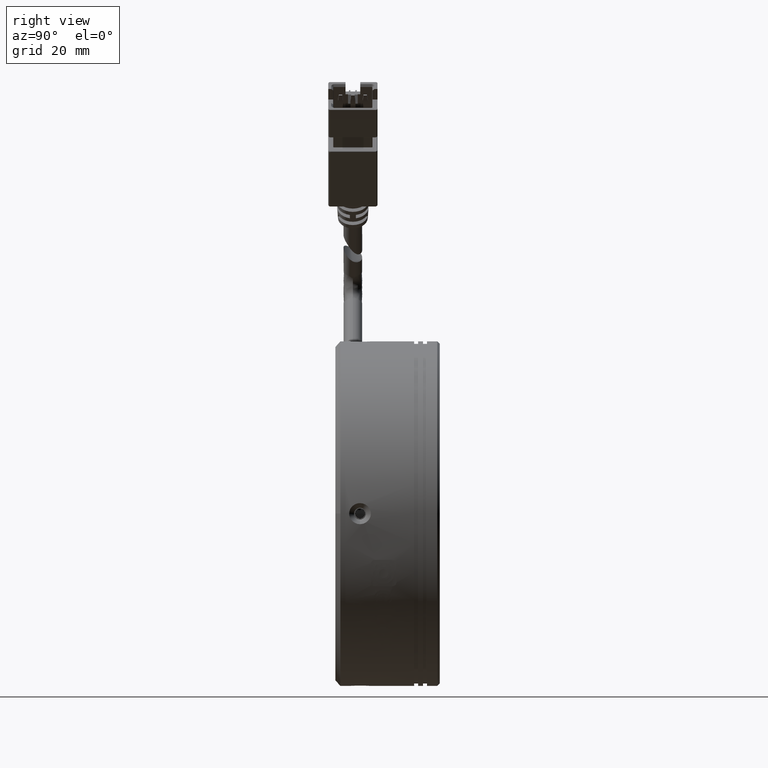
[diagram: clean part render]
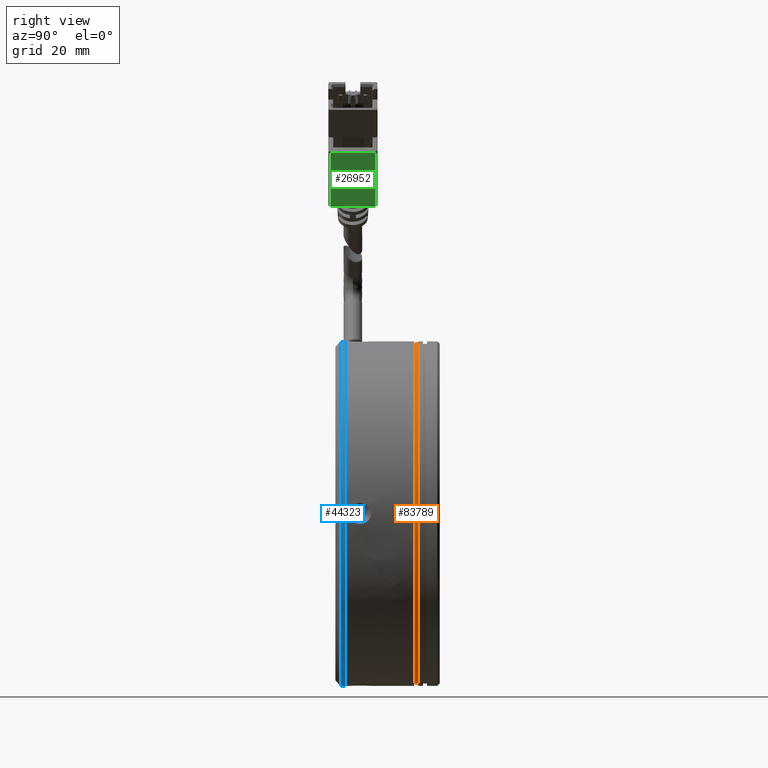
[diagram: same view with three faces highlighted in distinct colors, each labeled with its STEP entity id]
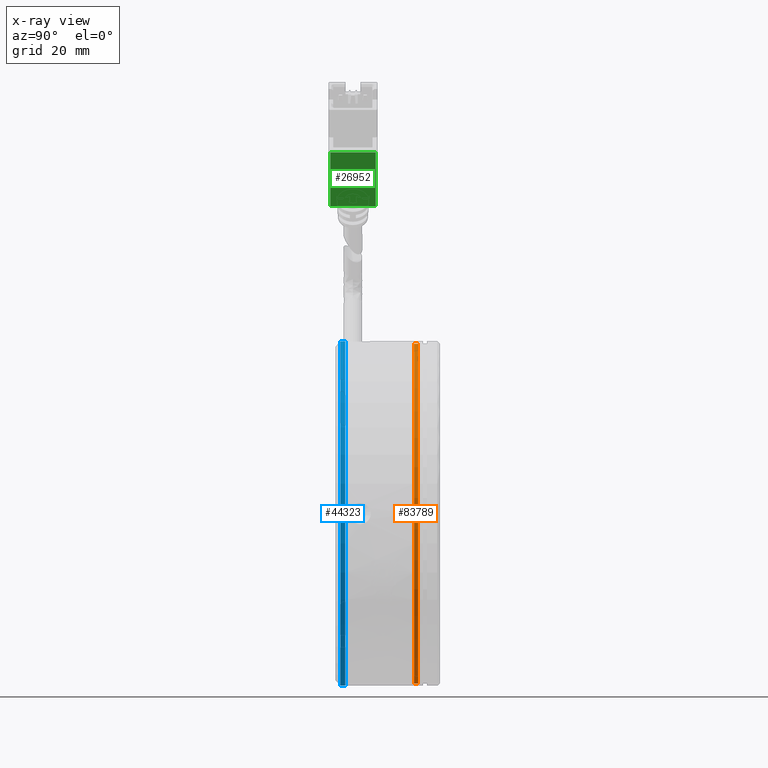
[diagram: x-ray of the same camera — body ghosted, the three highlighted faces saturated]
A machine part, right view with three faces highlighted in distinct colors.
The next image is the same camera in x-ray (body ghosted, the three faces saturated) — at least one of them is partly hidden behind the body in this view.
Their STEP definitions:

[orange] entity #83789 — the highlighted cylindrical surface (partial cylindrical patch) has radius 34.5 mm, axis along (-0, 1, -0).
#8212 = CIRCLE ( 'NONE', #49338, 34.50000000000000000 ) ;
#10632 = EDGE_CURVE ( 'NONE', #69471, #100024, #8212, .T. ) ;
#14315 = DIRECTION ( 'NONE',  ( -0.0000000000000000000, 1.000000000000000000, -0.0000000000000000000 ) ) ;
#16072 = VECTOR ( 'NONE', #79614, 1000.000000000000000 ) ;
#17702 = AXIS2_PLACEMENT_3D ( 'NONE', #73430, #97396, #65705 ) ;
#20538 = ORIENTED_EDGE ( 'NONE', *, *, #10632, .T. ) ;
#21811 = EDGE_CURVE ( 'NONE', #100024, #85615, #32176, .T. ) ;
#25638 = DIRECTION ( 'NONE',  ( 0.0000000000000000000, -1.000000000000000000, 0.0000000000000000000 ) ) ;
#32176 = LINE ( 'NONE', #62499, #74881 ) ;
#32441 = FACE_OUTER_BOUND ( 'NONE', #68642, .T. ) ;
#38430 = CARTESIAN_POINT ( 'NONE',  ( -37.22376356038466100, -9.936936790559604700, 21.39757451504468500 ) ) ;
#49338 = AXIS2_PLACEMENT_3D ( 'NONE', #89896, #89526, #88497 ) ;
#50849 = CARTESIAN_POINT ( 'NONE',  ( -37.22376356038466100, -10.73693679055960500, 21.39757451504468500 ) ) ;
#62499 = CARTESIAN_POINT ( 'NONE',  ( -37.22376356038465400, -18.43693679055963800, -47.60242548495532600 ) ) ;
#63813 = ORIENTED_EDGE ( 'NONE', *, *, #21811, .T. ) ;
#65410 = VERTEX_POINT ( 'NONE', #38430 ) ;
#65705 = DIRECTION ( 'NONE',  ( 0.0000000000000000000, 0.0000000000000000000, 1.000000000000000000 ) ) ;
#68642 = EDGE_LOOP ( 'NONE', ( #20538, #63813, #102768, #68748 ) ) ;
#68748 = ORIENTED_EDGE ( 'NONE', *, *, #96101, .F. ) ;
#69471 = VERTEX_POINT ( 'NONE', #50849 ) ;
#70589 = CARTESIAN_POINT ( 'NONE',  ( -37.22376356038465400, -9.936936790559604700, -47.60242548495532600 ) ) ;
#73430 = CARTESIAN_POINT ( 'NONE',  ( -37.22376356038466100, -18.43693679055963800, -13.10242548495532100 ) ) ;
#73749 = CARTESIAN_POINT ( 'NONE',  ( -37.22376356038466100, -9.936936790559604700, -13.10242548495532100 ) ) ;
#74881 = VECTOR ( 'NONE', #14315, 1000.000000000000000 ) ;
#79545 = CARTESIAN_POINT ( 'NONE',  ( -37.22376356038465400, -10.73693679055960500, -47.60242548495532600 ) ) ;
#79614 = DIRECTION ( 'NONE',  ( -0.0000000000000000000, 1.000000000000000000, -0.0000000000000000000 ) ) ;
#80238 = LINE ( 'NONE', #103168, #16072 ) ;
#81477 = CYLINDRICAL_SURFACE ( 'NONE', #17702, 34.50000000000000000 ) ;
#81882 = DIRECTION ( 'NONE',  ( 0.0000000000000000000, 0.0000000000000000000, 1.000000000000000000 ) ) ;
#83789 = ADVANCED_FACE ( 'NONE', ( #32441 ), #81477, .T. ) ;
#85520 = CIRCLE ( 'NONE', #91398, 34.50000000000000000 ) ;
#85615 = VERTEX_POINT ( 'NONE', #70589 ) ;
#88497 = DIRECTION ( 'NONE',  ( 0.0000000000000000000, 0.0000000000000000000, 1.000000000000000000 ) ) ;
#89526 = DIRECTION ( 'NONE',  ( -0.0000000000000000000, 1.000000000000000000, -0.0000000000000000000 ) ) ;
#89896 = CARTESIAN_POINT ( 'NONE',  ( -37.22376356038466100, -10.73693679055960500, -13.10242548495532100 ) ) ;
#91398 = AXIS2_PLACEMENT_3D ( 'NONE', #73749, #25638, #81882 ) ;
#91840 = EDGE_CURVE ( 'NONE', #85615, #65410, #85520, .T. ) ;
#96101 = EDGE_CURVE ( 'NONE', #69471, #65410, #80238, .T. ) ;
#97396 = DIRECTION ( 'NONE',  ( -0.0000000000000000000, 1.000000000000000000, -0.0000000000000000000 ) ) ;
#100024 = VERTEX_POINT ( 'NONE', #79545 ) ;
#102768 = ORIENTED_EDGE ( 'NONE', *, *, #91840, .T. ) ;
#103168 = CARTESIAN_POINT ( 'NONE',  ( -37.22376356038466100, -18.43693679055963800, 21.39757451504468500 ) ) ;

[blue] entity #44323 — the highlighted cylindrical surface (partial cylindrical patch) has radius 35 mm, axis along (-0, -1, -0).
#3523 = VERTEX_POINT ( 'NONE', #91219 ) ;
#5117 = ORIENTED_EDGE ( 'NONE', *, *, #92343, .F. ) ;
#10972 = VECTOR ( 'NONE', #73901, 1000.000000000000000 ) ;
#12324 = ORIENTED_EDGE ( 'NONE', *, *, #33097, .F. ) ;
#20973 = ORIENTED_EDGE ( 'NONE', *, *, #82830, .T. ) ;
#23369 = AXIS2_PLACEMENT_3D ( 'NONE', #39017, #47079, #32701 ) ;
#28299 = AXIS2_PLACEMENT_3D ( 'NONE', #84053, #35883, #92121 ) ;
#32398 = LINE ( 'NONE', #73550, #10972 ) ;
#32560 = CARTESIAN_POINT ( 'NONE',  ( -37.22376356038467500, -25.73693679055961100, -13.10242548495533300 ) ) ;
#32701 = DIRECTION ( 'NONE',  ( 0.0000000000000000000, 0.0000000000000000000, -1.000000000000000000 ) ) ;
#33097 = EDGE_CURVE ( 'NONE', #72331, #78908, #32398, .T. ) ;
#34183 = CARTESIAN_POINT ( 'NONE',  ( -37.22376356038467500, -24.73693679055958600, -48.10242548495534000 ) ) ;
#34920 = VECTOR ( 'NONE', #43268, 1000.000000000000000 ) ;
#35883 = DIRECTION ( 'NONE',  ( -0.0000000000000000000, -1.000000000000000000, -0.0000000000000000000 ) ) ;
#39017 = CARTESIAN_POINT ( 'NONE',  ( -37.22376356038467500, -41.20363406813558500, -13.10242548495533300 ) ) ;
#40663 = DIRECTION ( 'NONE',  ( -7.930164461608261400E-016, -9.912705577010326800E-017, 1.000000000000000000 ) ) ;
#43268 = DIRECTION ( 'NONE',  ( -0.0000000000000000000, -1.000000000000000000, -0.0000000000000000000 ) ) ;
#44323 = ADVANCED_FACE ( 'NONE', ( #66295 ), #48680, .T. ) ;
#47079 = DIRECTION ( 'NONE',  ( -0.0000000000000000000, -1.000000000000000000, -0.0000000000000000000 ) ) ;
#47101 = CARTESIAN_POINT ( 'NONE',  ( -37.22376356038467500, -24.73693679055958600, -13.10242548495533300 ) ) ;
#48680 = CYLINDRICAL_SURFACE ( 'NONE', #23369, 35.00000000000000000 ) ;
#51260 = VERTEX_POINT ( 'NONE', #72224 ) ;
#51782 = CIRCLE ( 'NONE', #28299, 35.00000000000000000 ) ;
#51848 = EDGE_CURVE ( 'NONE', #51260, #69425, #96522, .T. ) ;
#55197 = DIRECTION ( 'NONE',  ( 0.0000000000000000000, 0.0000000000000000000, -1.000000000000000000 ) ) ;
#55865 = CARTESIAN_POINT ( 'NONE',  ( -37.22376356038467500, -25.73693679055961100, -48.10242548495534000 ) ) ;
#58972 = CARTESIAN_POINT ( 'NONE',  ( -37.22376356038466800, -25.73693679055961100, 21.89757451504467100 ) ) ;
#65982 = ORIENTED_EDGE ( 'NONE', *, *, #51848, .T. ) ;
#66295 = FACE_OUTER_BOUND ( 'NONE', #90447, .T. ) ;
#69425 = VERTEX_POINT ( 'NONE', #58972 ) ;
#72224 = CARTESIAN_POINT ( 'NONE',  ( -37.22376356038466800, -24.73693679055958600, 21.89757451504467100 ) ) ;
#72331 = VERTEX_POINT ( 'NONE', #34183 ) ;
#73550 = CARTESIAN_POINT ( 'NONE',  ( -37.22376356038467500, -41.20363406813558500, -48.10242548495534000 ) ) ;
#73901 = DIRECTION ( 'NONE',  ( -0.0000000000000000000, -1.000000000000000000, -0.0000000000000000000 ) ) ;
#77962 = AXIS2_PLACEMENT_3D ( 'NONE', #32560, #88806, #40663 ) ;
#78185 = EDGE_CURVE ( 'NONE', #78908, #3523, #51782, .T. ) ;
#78908 = VERTEX_POINT ( 'NONE', #55865 ) ;
#82830 = EDGE_CURVE ( 'NONE', #72331, #51260, #101115, .T. ) ;
#84053 = CARTESIAN_POINT ( 'NONE',  ( -37.22376356038467500, -25.73693679055961100, -13.10242548495533300 ) ) ;
#88806 = DIRECTION ( 'NONE',  ( -0.0000000000000000000, -1.000000000000000000, -0.0000000000000000000 ) ) ;
#90447 = EDGE_LOOP ( 'NONE', ( #20973, #65982, #5117, #93927, #12324 ) ) ;
#91219 = CARTESIAN_POINT ( 'NONE',  ( -2.223763560384672800, -25.73693679055961100, -13.10242548495532900 ) ) ;
#91476 = CARTESIAN_POINT ( 'NONE',  ( -37.22376356038466800, -41.20363406813558500, 21.89757451504467100 ) ) ;
#92121 = DIRECTION ( 'NONE',  ( 0.0000000000000000000, -9.912705577010326800E-017, 1.000000000000000000 ) ) ;
#92343 = EDGE_CURVE ( 'NONE', #3523, #69425, #92836, .T. ) ;
#92836 = CIRCLE ( 'NONE', #77962, 35.00000000000000000 ) ;
#93542 = AXIS2_PLACEMENT_3D ( 'NONE', #47101, #103332, #55197 ) ;
#93927 = ORIENTED_EDGE ( 'NONE', *, *, #78185, .F. ) ;
#96522 = LINE ( 'NONE', #91476, #34920 ) ;
#101115 = CIRCLE ( 'NONE', #93542, 35.00000000000000000 ) ;
#103332 = DIRECTION ( 'NONE',  ( -0.0000000000000000000, -1.000000000000000000, -0.0000000000000000000 ) ) ;

[green] entity #26952 — the highlighted planar face has unit normal (-0.7071, -0, 0.7071).
#2714 = EDGE_CURVE ( 'NONE', #61691, #90692, #103710, .T. ) ;
#6745 = LINE ( 'NONE', #46755, #89807 ) ;
#7053 = CARTESIAN_POINT ( 'NONE',  ( -49.95168562174225000, -28.18693679055955300, 60.43667975844594100 ) ) ;
#7837 = CARTESIAN_POINT ( 'NONE',  ( -60.98255140825244800, -28.18693679055955700, 49.40581397193585600 ) ) ;
#9626 = CARTESIAN_POINT ( 'NONE',  ( -50.09310697797956600, -27.78693679055955500, 60.29525840220863100 ) ) ;
#9684 = DIRECTION ( 'NONE',  ( 0.7071067811865512400, 2.404204077359530700E-016, 0.7071067811865439100 ) ) ;
#9737 = LINE ( 'NONE', #81160, #68807 ) ;
#10005 = CARTESIAN_POINT ( 'NONE',  ( -49.95168562174225000, -27.78693679055955500, 60.43667975844594100 ) ) ;
#10118 = EDGE_CURVE ( 'NONE', #90692, #88249, #9737, .T. ) ;
#10963 = CARTESIAN_POINT ( 'NONE',  ( -60.98255140825244800, -27.78693679055955800, 49.40581397193585600 ) ) ;
#14762 = DIRECTION ( 'NONE',  ( -0.7071067811865512400, -2.404204077359530700E-016, -0.7071067811865439100 ) ) ;
#15151 = DIRECTION ( 'NONE',  ( 2.961358209323500000E-016, -1.000000000000000000, 4.386998035910290900E-017 ) ) ;
#18702 = ORIENTED_EDGE ( 'NONE', *, *, #10118, .F. ) ;
#20784 = EDGE_LOOP ( 'NONE', ( #18702, #90303, #65023, #69250 ) ) ;
#26952 = ADVANCED_FACE ( 'NONE', ( #50706 ), #79148, .F. ) ;
#27853 = CARTESIAN_POINT ( 'NONE',  ( -60.98255140825245500, -18.58693679055955900, 49.40581397193585600 ) ) ;
#28729 = AXIS2_PLACEMENT_3D ( 'NONE', #7053, #63291, #15151 ) ;
#46755 = CARTESIAN_POINT ( 'NONE',  ( -49.95168562174225000, -18.58693679055955500, 60.43667975844594800 ) ) ;
#50706 = FACE_OUTER_BOUND ( 'NONE', #20784, .T. ) ;
#51012 = VECTOR ( 'NONE', #64064, 1000.000000000000000 ) ;
#55475 = VERTEX_POINT ( 'NONE', #27853 ) ;
#60650 = EDGE_CURVE ( 'NONE', #88249, #55475, #6745, .T. ) ;
#60951 = VECTOR ( 'NONE', #9684, 999.9999999999998900 ) ;
#61691 = VERTEX_POINT ( 'NONE', #10963 ) ;
#63291 = DIRECTION ( 'NONE',  ( -0.7071067811865439100, -1.783788865310662600E-016, 0.7071067811865512400 ) ) ;
#64064 = DIRECTION ( 'NONE',  ( 2.961358209323500000E-016, -1.000000000000000000, 4.386998035910290900E-017 ) ) ;
#65023 = ORIENTED_EDGE ( 'NONE', *, *, #67377, .F. ) ;
#67377 = EDGE_CURVE ( 'NONE', #55475, #61691, #93779, .T. ) ;
#68807 = VECTOR ( 'NONE', #73699, 1000.000000000000000 ) ;
#69250 = ORIENTED_EDGE ( 'NONE', *, *, #60650, .F. ) ;
#73699 = DIRECTION ( 'NONE',  ( -2.961358209323500000E-016, 1.000000000000000000, -4.386998035910290900E-017 ) ) ;
#79148 = PLANE ( 'NONE',  #28729 ) ;
#81160 = CARTESIAN_POINT ( 'NONE',  ( -50.09310697797955900, -28.18693679055955300, 60.29525840220863100 ) ) ;
#88249 = VERTEX_POINT ( 'NONE', #103442 ) ;
#89807 = VECTOR ( 'NONE', #14762, 999.9999999999998900 ) ;
#90303 = ORIENTED_EDGE ( 'NONE', *, *, #2714, .F. ) ;
#90692 = VERTEX_POINT ( 'NONE', #9626 ) ;
#93779 = LINE ( 'NONE', #7837, #51012 ) ;
#103442 = CARTESIAN_POINT ( 'NONE',  ( -50.09310697797956600, -18.58693679055955500, 60.29525840220863100 ) ) ;
#103710 = LINE ( 'NONE', #10005, #60951 ) ;